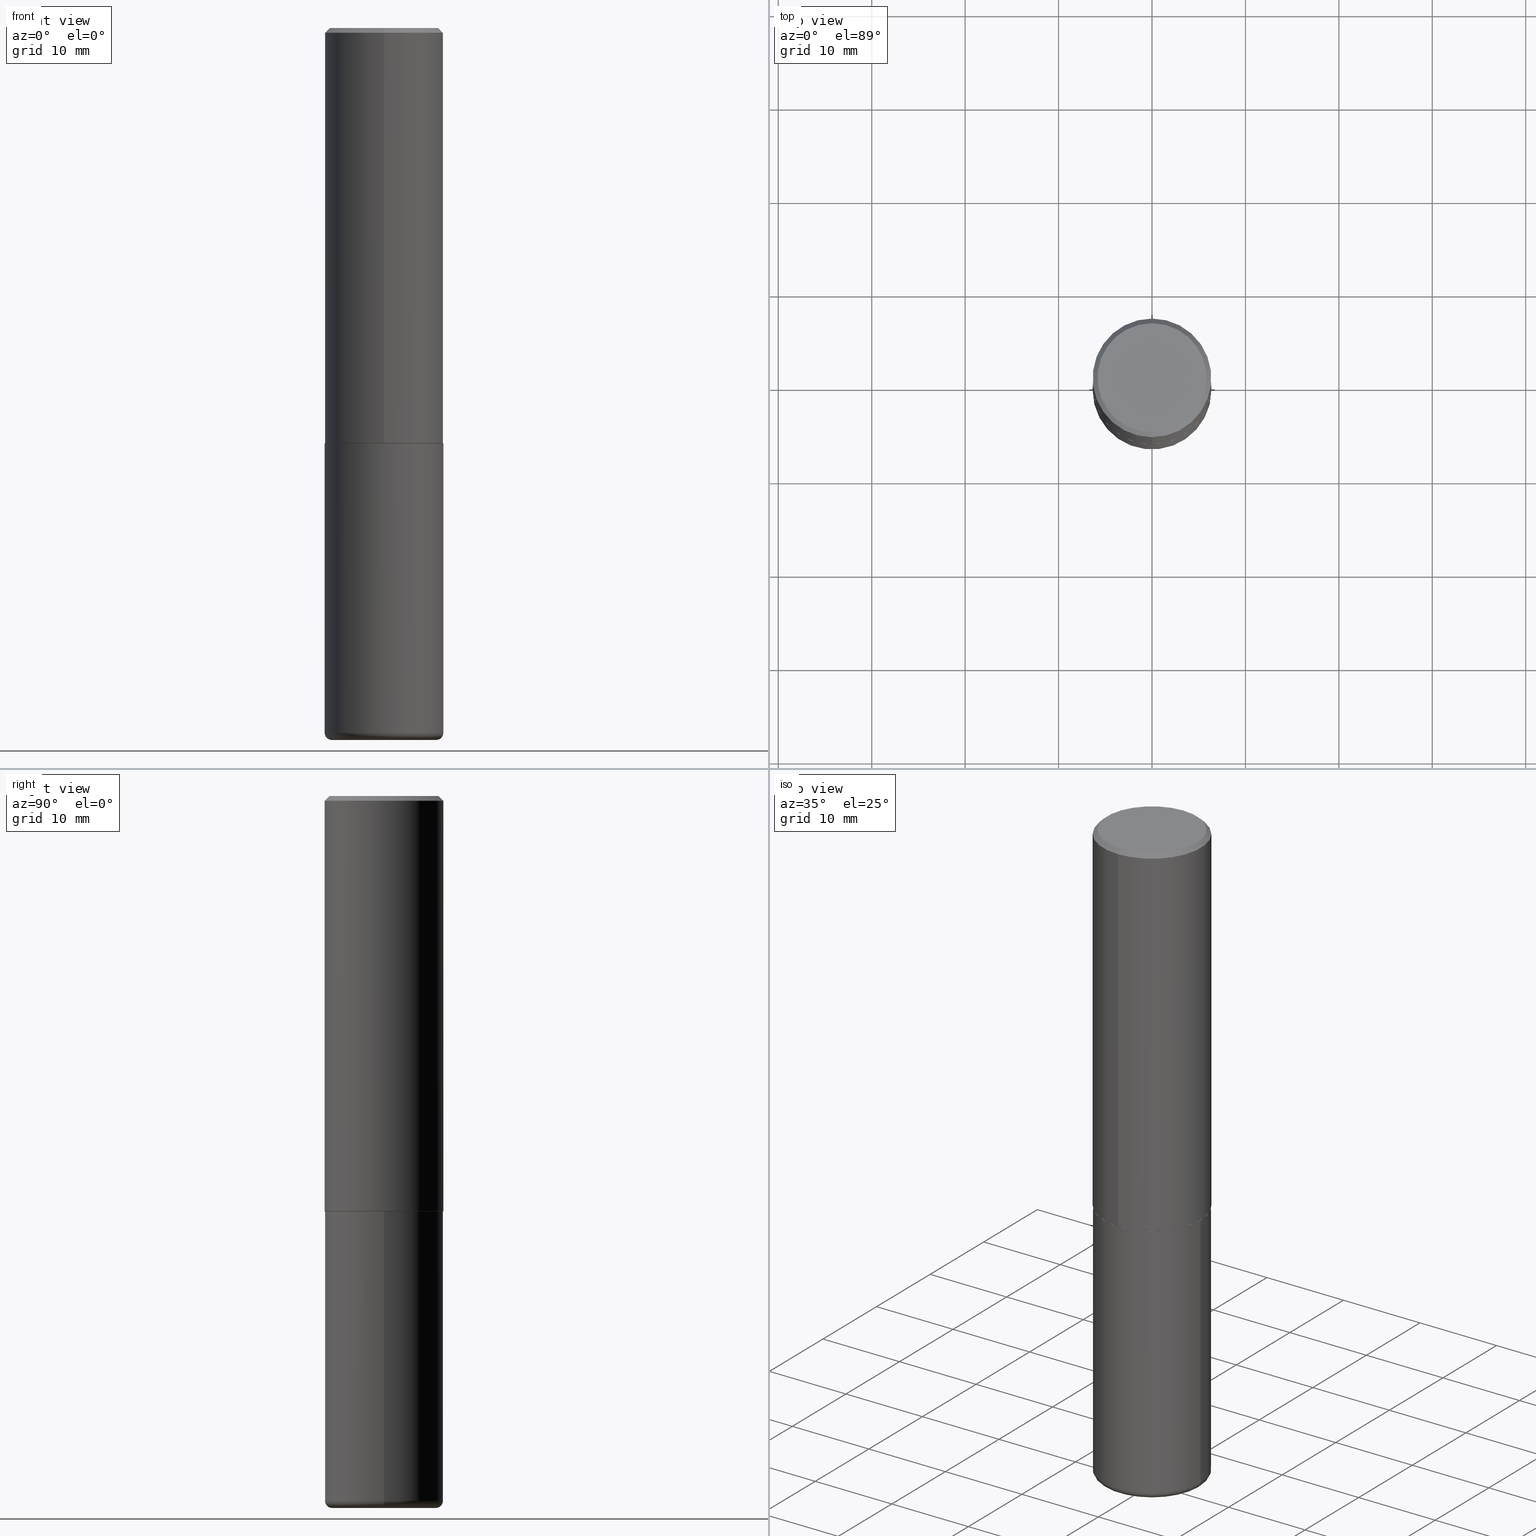
[diagram: canonical four-view strip — front | top / right | iso, engineering-drawing reading convention]
A machine part, canonical four-view strip (front | top / right | iso — engineering-drawing reading convention). The complete STEP part file that produces these views, byte-faithful:
ISO-10303-21;
HEADER;
FILE_DESCRIPTION (( 'STEP AP203' ),
    '1' );
FILE_NAME ('36630.STEP',
    '2024-03-01T17:07:47',
    ( '' ),
    ( '' ),
    'SwSTEP 2.0',
    'SolidWorks 2023',
    '' );
FILE_SCHEMA (( 'CONFIG_CONTROL_DESIGN' ));
ENDSEC;

DATA;
#1 = FACE_OUTER_BOUND ( 'NONE', #214, .T. ) ;
#2 = CARTESIAN_POINT ( 'NONE',  ( 4.890144249563362123E-31, -6.984098818381232815E-17, -0.02000000000000005593 ) ) ;
#3 = PRODUCT ( '36630', '36630', '', ( #344 ) ) ;
#4 = APPROVAL ( #284, 'UNSPECIFIED' ) ;
#5 = ORIENTED_EDGE ( 'NONE', *, *, #259, .T. ) ;
#6 = LINE ( 'NONE', #59, #158 ) ;
#7 = CC_DESIGN_APPROVAL ( #4, ( #40 ) ) ;
#8 = FACE_OUTER_BOUND ( 'NONE', #354, .T. ) ;
#9 = CARTESIAN_POINT ( 'NONE',  ( 4.279570410823989044E-29, -6.110092342975505460E-15, -1.750000000000000222 ) ) ;
#10 = ORIENTED_EDGE ( 'NONE', *, *, #264, .F. ) ;
#11 = CC_DESIGN_PERSON_AND_ORGANIZATION_ASSIGNMENT ( #246, #153, ( #204 ) ) ;
#12 = CYLINDRICAL_SURFACE ( 'NONE', #223, 0.2500000000000000000 ) ;
#13 = CARTESIAN_POINT ( 'NONE',  ( 0.2200000000000000011, -1.201069580562041471E-14, -2.999999999999999556 ) ) ;
#14 = CARTESIAN_POINT ( 'NONE',  ( 1.675911042644703774E-15, 0.2299999999999998990, -6.920593831913123980E-16 ) ) ;
#15 = DIRECTION ( 'NONE',  ( -6.982962677686265133E-15, -1.000000000000000000, 3.291383124896702687E-15 ) ) ;
#16 = ADVANCED_FACE ( 'NONE', ( #1 ), #243, .T. ) ;
#17 = LINE ( 'NONE', #149, #278 ) ;
#18 = DIRECTION ( 'NONE',  ( 1.000000000000000000, -6.982962677686266711E-15, 4.876176775795935793E-29 ) ) ;
#19 = DIRECTION ( 'NONE',  ( -4.937700262164884886E-15, -0.7071067811865933139, 0.7071067811865017205 ) ) ;
#20 = DATE_AND_TIME ( #250, #294 ) ;
#21 = ADVANCED_FACE ( 'NONE', ( #148 ), #12, .T. ) ;
#22 = DIRECTION ( 'NONE',  ( -6.982962677686265133E-15, -1.000000000000000000, 3.291383124896702687E-15 ) ) ;
#23 = COORDINATED_UNIVERSAL_TIME_OFFSET ( 5, 0, .BEHIND. ) ;
#24 = PERSON_AND_ORGANIZATION ( #232, #194 ) ;
#25 = CARTESIAN_POINT ( 'NONE',  ( -2.716768072829434168E-45, 3.880085273345076260E-31, 1.111119809225267872E-16 ) ) ;
#26 = EDGE_CURVE ( 'NONE', #219, #306, #193, .T. ) ;
#27 = CARTESIAN_POINT ( 'NONE',  ( -0.2499999999999998612, -8.593342736963892519E-15, -2.970000000000000195 ) ) ;
#28 = APPROVAL_ROLE ( '' ) ;
#29 = EDGE_LOOP ( 'NONE', ( #37, #185, #171, #38 ) ) ;
#30 = DATE_TIME_ROLE ( 'creation_date' ) ;
#31 = DIRECTION ( 'NONE',  ( -6.982962677686265922E-15, -1.000000000000000000, 3.492049409190606744E-15 ) ) ;
#32 = AXIS2_PLACEMENT_3D ( 'NONE', #239, #317, #313 ) ;
#33 = AXIS2_PLACEMENT_3D ( 'NONE', #96, #266, #383 ) ;
#34 = ORIENTED_EDGE ( 'NONE', *, *, #346, .F. ) ;
#35 = PLANE ( 'NONE',  #343 ) ;
#36 = LINE ( 'NONE', #301, #49 ) ;
#37 = ORIENTED_EDGE ( 'NONE', *, *, #319, .F. ) ;
#38 = ORIENTED_EDGE ( 'NONE', *, *, #207, .F. ) ;
#39 = AXIS2_PLACEMENT_3D ( 'NONE', #177, #159, #45 ) ;
#40 = SECURITY_CLASSIFICATION ( '', '', #378 ) ;
#41 = CC_DESIGN_PERSON_AND_ORGANIZATION_ASSIGNMENT ( #113, #152, ( #172 ) ) ;
#42 = ORIENTED_EDGE ( 'NONE', *, *, #183, .F. ) ;
#43 = CARTESIAN_POINT ( 'NONE',  ( 7.336406418555408669E-29, -1.047444401652943478E-14, -2.999999999999999556 ) ) ;
#44 = DIRECTION ( 'NONE',  ( -2.445072124781674388E-29, 3.492049409190606744E-15, 1.000000000000000000 ) ) ;
#45 = DIRECTION ( 'NONE',  ( -6.982962677686265133E-15, -1.000000000000000000, 3.278217592397113101E-15 ) ) ;
#46 = EDGE_LOOP ( 'NONE', ( #231, #267, #304, #274 ) ) ;
#47 = DIRECTION ( 'NONE',  ( -2.445468806185136597E-29, 3.491481338843145583E-15, 1.000000000000000000 ) ) ;
#48 = DIRECTION ( 'NONE',  ( 1.000000000000000000, -6.982962677686266711E-15, 0.000000000000000000 ) ) ;
#49 = VECTOR ( 'NONE', #146, 39.37007874015748143 ) ;
#50 = LINE ( 'NONE', #173, #210 ) ;
#51 = DIRECTION ( 'NONE',  ( 1.000000000000000000, -6.982962677686262766E-15, 4.883557194083111780E-29 ) ) ;
#52 = DIRECTION ( 'NONE',  ( -2.445468806185136597E-29, 3.491481338843145583E-15, 1.000000000000000000 ) ) ;
#53 = DIRECTION ( 'NONE',  ( 6.982962677686265922E-15, 1.000000000000000000, -3.500180241882336472E-15 ) ) ;
#54 = DIRECTION ( 'NONE',  ( -2.445072124781674388E-29, 3.492049409190606744E-15, 1.000000000000000000 ) ) ;
#55 = AXIS2_PLACEMENT_3D ( 'NONE', #372, #402, #150 ) ;
#56 = CC_DESIGN_DATE_AND_TIME_ASSIGNMENT ( #20, #30, ( #204 ) ) ;
#57 = AXIS2_PLACEMENT_3D ( 'NONE', #411, #408, #125 ) ;
#58 = APPROVAL_ROLE ( '' ) ;
#59 = CARTESIAN_POINT ( 'NONE',  ( -1.745740669421567467E-15, -0.2500000000000001110, 8.730123522976521790E-16 ) ) ;
#60 = COORDINATED_UNIVERSAL_TIME_OFFSET ( 5, 0, .BEHIND. ) ;
#61 = APPROVAL_DATE_TIME ( #349, #4 ) ;
#62 = EDGE_CURVE ( 'NONE', #156, #360, #170, .T. ) ;
#63 = CARTESIAN_POINT ( 'NONE',  ( 1.745740669421567467E-15, 0.2500000000000000000, -0.02000000000000093023 ) ) ;
#64 = AXIS2_PLACEMENT_3D ( 'NONE', #395, #202, #53 ) ;
#65 = APPROVAL_STATUS ( 'not_yet_approved' ) ;
#66 = LOCAL_TIME ( 12, 7, 47.00000000000000000, #212 ) ;
#67 = ORIENTED_EDGE ( 'NONE', *, *, #227, .T. ) ;
#68 = DIRECTION ( 'NONE',  ( 1.000000000000000000, 0.000000000000000000, 0.000000000000000000 ) ) ;
#69 = ORIENTED_EDGE ( 'NONE', *, *, #296, .T. ) ;
#70 = CONICAL_SURFACE ( 'NONE', #64, 0.2500000000000000555, 0.7853981633974481680 ) ;
#71 = ORIENTED_EDGE ( 'NONE', *, *, #296, .F. ) ;
#72 = ORIENTED_EDGE ( 'NONE', *, *, #160, .T. ) ;
#73 = DIRECTION ( 'NONE',  ( -2.445072124781674388E-29, 3.492049409190606744E-15, 1.000000000000000000 ) ) ;
#74 = VERTEX_POINT ( 'NONE', #14 ) ;
#75 = CIRCLE ( 'NONE', #314, 0.2500000000000000000 ) ;
#76 = MANIFOLD_SOLID_BREP ( 'Body-Move/Copy2[1]', #326 ) ;
#77 = VERTEX_POINT ( 'NONE', #366 ) ;
#78 = CARTESIAN_POINT ( 'NONE',  ( 4.276431146243148366E-29, -6.107594416674370195E-15, -1.748999999999999888 ) ) ;
#79 = ADVANCED_FACE ( 'NONE', ( #398 ), #109, .T. ) ;
#80 = MANIFOLD_SOLID_BREP ( 'Body-Move/Copy2[2]', #221 ) ;
#81 = VECTOR ( 'NONE', #348, 39.37007874015748143 ) ;
#82 = CIRCLE ( 'NONE', #101, 0.2500000000000000555 ) ;
#83 = CC_DESIGN_APPROVAL ( #331, ( #204 ) ) ;
#84 = ADVANCED_FACE ( 'NONE', ( #8 ), #396, .T. ) ;
#85 = DATE_AND_TIME ( #119, #357 ) ;
#86 = EDGE_CURVE ( 'NONE', #302, #95, #178, .T. ) ;
#87 = PERSON_AND_ORGANIZATION ( #232, #194 ) ;
#88 = DIRECTION ( 'NONE',  ( -2.445468806185136597E-29, 3.491481338843145583E-15, 1.000000000000000000 ) ) ;
#89 = AXIS2_PLACEMENT_3D ( 'NONE', #43, #196, #320 ) ;
#90 = PERSON_AND_ORGANIZATION_ROLE ( 'classification_officer' ) ;
#91 = FACE_OUTER_BOUND ( 'NONE', #136, .T. ) ;
#92 = ORIENTED_EDGE ( 'NONE', *, *, #292, .T. ) ;
#93 = ADVANCED_FACE ( 'NONE', ( #107 ), #234, .T. ) ;
#94 = AXIS2_PLACEMENT_3D ( 'NONE', #25, #73, #254 ) ;
#95 = VERTEX_POINT ( 'NONE', #143 ) ;
#96 = CARTESIAN_POINT ( 'NONE',  ( 0.2200000000000000011, -1.190595136545512292E-14, -2.970000000000000195 ) ) ;
#97 = DIRECTION ( 'NONE',  ( -2.445072124781674107E-29, 3.492049409190606350E-15, 1.000000000000000000 ) ) ;
#98 = CARTESIAN_POINT ( 'NONE',  ( 0.000000000000000000, 0.000000000000000000, 0.000000000000000000 ) ) ;
#99 = EDGE_LOOP ( 'NONE', ( #163, #393 ) ) ;
#100 = DIRECTION ( 'NONE',  ( 2.438088387897960049E-29, -3.491481338843145188E-15, -1.000000000000000000 ) ) ;
#101 = AXIS2_PLACEMENT_3D ( 'NONE', #2, #412, #297 ) ;
#102 = ORIENTED_EDGE ( 'NONE', *, *, #385, .F. ) ;
#103 = CARTESIAN_POINT ( 'NONE',  ( 0.000000000000000000, 0.000000000000000000, 0.000000000000000000 ) ) ;
#104 = CARTESIAN_POINT ( 'NONE',  ( 0.2500000000000000000, -7.855833012397072137E-15, -1.750000000000000222 ) ) ;
#105 = ORIENTED_EDGE ( 'NONE', *, *, #26, .T. ) ;
#106 = CIRCLE ( 'NONE', #340, 0.2500000000000000000 ) ;
#107 = FACE_OUTER_BOUND ( 'NONE', #226, .T. ) ;
#108 = LENGTH_MEASURE_WITH_UNIT ( LENGTH_MEASURE( 0.02539999999999999897 ), #237 );
#109 = PLANE ( 'NONE',  #293 ) ;
#110 = DIRECTION ( 'NONE',  ( 5.024295867788404755E-15, 0.7071067811865981989, 0.7071067811864968355 ) ) ;
#111 = DATE_TIME_ROLE ( 'classification_date' ) ;
#112 = APPLICATION_PROTOCOL_DEFINITION ( 'international standard', 'config_control_design', 1994, #315 ) ;
#113 = PERSON_AND_ORGANIZATION ( #232, #194 ) ;
#114 = AXIS2_PLACEMENT_3D ( 'NONE', #303, #44, #416 ) ;
#115 = CIRCLE ( 'NONE', #269, 0.02999999999999971440 ) ;
#116 = COORDINATED_UNIVERSAL_TIME_OFFSET ( 5, 0, .BEHIND. ) ;
#117 = CYLINDRICAL_SURFACE ( 'NONE', #135, 0.2500000000000001110 ) ;
#118 = DIRECTION ( 'NONE',  ( -2.445072124781674388E-29, 3.492049409190606350E-15, 1.000000000000000000 ) ) ;
#119 = CALENDAR_DATE ( 2024, 1, 3 ) ;
#120 = CARTESIAN_POINT ( 'NONE',  ( -0.2500000000000000000, -6.463539120269572968E-15, -1.750000000000000222 ) ) ;
#121 = APPLICATION_PROTOCOL_DEFINITION ( 'international standard', 'config_control_design', 1994, #238 ) ;
#122 = CARTESIAN_POINT ( 'NONE',  ( 4.278876218367930669E-29, -6.111086466083562295E-15, -1.750000000000000222 ) ) ;
#123 = AXIS2_PLACEMENT_3D ( 'NONE', #103, #353, #68 ) ;
#124 = EDGE_CURVE ( 'NONE', #417, #77, #50, .T. ) ;
#125 = DIRECTION ( 'NONE',  ( 6.982962677686265922E-15, 1.000000000000000000, -3.492049409190606350E-15 ) ) ;
#126 = CC_DESIGN_DATE_AND_TIME_ASSIGNMENT ( #401, #111, ( #40 ) ) ;
#127 = ORIENTED_EDGE ( 'NONE', *, *, #292, .F. ) ;
#128 = CARTESIAN_POINT ( 'NONE',  ( 4.890144249563362123E-31, -6.984098818381232815E-17, -0.02000000000000005593 ) ) ;
#129 = CIRCLE ( 'NONE', #89, 0.2200000000000000011 ) ;
#130 =( GEOMETRIC_REPRESENTATION_CONTEXT ( 3 ) GLOBAL_UNCERTAINTY_ASSIGNED_CONTEXT ( ( #367 ) ) GLOBAL_UNIT_ASSIGNED_CONTEXT ( ( #236, #342, #399 ) ) REPRESENTATION_CONTEXT ( 'NONE', 'WORKASPACE' ) );
#131 = ORIENTED_EDGE ( 'NONE', *, *, #365, .T. ) ;
#132 = ORIENTED_EDGE ( 'NONE', *, *, #255, .T. ) ;
#133 = ORIENTED_EDGE ( 'NONE', *, *, #62, .T. ) ;
#134 = DIRECTION ( 'NONE',  ( 6.982962677686265922E-15, 1.000000000000000000, -3.500180241882336472E-15 ) ) ;
#135 = AXIS2_PLACEMENT_3D ( 'NONE', #229, #144, #288 ) ;
#136 = EDGE_LOOP ( 'NONE', ( #358, #300 ) ) ;
#137 = DIRECTION ( 'NONE',  ( -6.982962677686265133E-15, -1.000000000000000000, 3.278217592397113101E-15 ) ) ;
#138 = DESIGN_CONTEXT ( 'detailed design', #238, 'design' ) ;
#139 = CARTESIAN_POINT ( 'NONE',  ( -0.2500000000000000000, 1.776356839400250465E-15, -1.229733772563726445E-29 ) ) ;
#140 = ORIENTED_EDGE ( 'NONE', *, *, #259, .F. ) ;
#141 = ADVANCED_FACE ( 'NONE', ( #394 ), #70, .T. ) ;
#142 = CARTESIAN_POINT ( 'NONE',  ( 4.278876218367929548E-29, -6.111086466083561506E-15, -1.750000000000000000 ) ) ;
#143 = CARTESIAN_POINT ( 'NONE',  ( 1.776356839400273342E-15, 0.2499999999999941158, -1.749000000000000554 ) ) ;
#144 = DIRECTION ( 'NONE',  ( -2.445072124781674388E-29, 3.492049409190606744E-15, 1.000000000000000000 ) ) ;
#145 = CARTESIAN_POINT ( 'NONE',  ( -1.646519519465166968E-15, -0.2299999999999998990, 9.142833450363660218E-16 ) ) ;
#146 = DIRECTION ( 'NONE',  ( -2.445072124781674107E-29, 3.492049409190606350E-15, 1.000000000000000000 ) ) ;
#147 = APPROVAL_PERSON_ORGANIZATION ( #240, #331, #58 ) ;
#148 = FACE_OUTER_BOUND ( 'NONE', #333, .T. ) ;
#149 = CARTESIAN_POINT ( 'NONE',  ( -1.738757706743837473E-15, -0.2490000000000061053, -1.749999999999999112 ) ) ;
#150 = DIRECTION ( 'NONE',  ( 1.000000000000000000, -6.982962677686270655E-15, 0.000000000000000000 ) ) ;
#151 = LINE ( 'NONE', #139, #268 ) ;
#152 = PERSON_AND_ORGANIZATION_ROLE ( 'creator' ) ;
#153 = PERSON_AND_ORGANIZATION_ROLE ( 'creator' ) ;
#154 = CIRCLE ( 'NONE', #39, 0.2500000000000002220 ) ;
#155 = PERSON_AND_ORGANIZATION_ROLE ( 'design_owner' ) ;
#156 = VERTEX_POINT ( 'NONE', #175 ) ;
#157 = CARTESIAN_POINT ( 'NONE',  ( 0.2500000000000000000, -1.745740669421566678E-15, 1.219044193948983948E-29 ) ) ;
#158 = VECTOR ( 'NONE', #97, 39.37007874015748143 ) ;
#159 = DIRECTION ( 'NONE',  ( -2.445072124781674388E-29, 3.492049409190606744E-15, 1.000000000000000000 ) ) ;
#160 = EDGE_CURVE ( 'NONE', #95, #302, #154, .T. ) ;
#161 = EDGE_LOOP ( 'NONE', ( #386, #67, #102, #71 ) ) ;
#162 = CARTESIAN_POINT ( 'NONE',  ( 7.336406418555408669E-29, -1.047444401652943478E-14, -2.999999999999999556 ) ) ;
#163 = ORIENTED_EDGE ( 'NONE', *, *, #324, .F. ) ;
#164 = EDGE_LOOP ( 'NONE', ( #132, #5 ) ) ;
#165 = ORIENTED_EDGE ( 'NONE', *, *, #86, .F. ) ;
#166 = AXIS2_PLACEMENT_3D ( 'NONE', #316, #47, #51 ) ;
#167 = ORIENTED_EDGE ( 'NONE', *, *, #283, .F. ) ;
#168 = DIRECTION ( 'NONE',  ( -2.445072124781674388E-29, 3.492049409190606744E-15, 1.000000000000000000 ) ) ;
#169 = DIRECTION ( 'NONE',  ( -2.445468806185136597E-29, 3.491481338843145583E-15, 1.000000000000000000 ) ) ;
#170 = CIRCLE ( 'NONE', #55, 0.2500000000000000000 ) ;
#171 = ORIENTED_EDGE ( 'NONE', *, *, #385, .T. ) ;
#172 = PRODUCT_DEFINITION_FORMATION_WITH_SPECIFIED_SOURCE ( 'ANY', '', #3, .NOT_KNOWN. ) ;
#173 = CARTESIAN_POINT ( 'NONE',  ( -1.715124499442882693E-15, -0.2500000000000001110, -0.01999999999999918163 ) ) ;
#174 = DIRECTION ( 'NONE',  ( -2.445072124781674388E-29, 3.492049409190606744E-15, 1.000000000000000000 ) ) ;
#175 = CARTESIAN_POINT ( 'NONE',  ( 0.2499999999999998612, -1.211544024578571124E-14, -2.970000000000000195 ) ) ;
#176 = DIRECTION ( 'NONE',  ( -6.982962677686266711E-15, -1.000000000000000000, 3.492049409190607138E-15 ) ) ;
#177 = CARTESIAN_POINT ( 'NONE',  ( 4.276431146243148366E-29, -6.107594416674370195E-15, -1.748999999999999888 ) ) ;
#178 = CIRCLE ( 'NONE', #203, 0.2500000000000002220 ) ;
#179 = ADVANCED_FACE ( 'NONE', ( #181 ), #117, .T. ) ;
#180 = DIRECTION ( 'NONE',  ( 1.000000000000000000, -6.982962677686266711E-15, 4.876176775795935793E-29 ) ) ;
#181 = FACE_OUTER_BOUND ( 'NONE', #218, .T. ) ;
#182 = SHAPE_DEFINITION_REPRESENTATION ( #222, #249 ) ;
#183 = EDGE_CURVE ( 'NONE', #156, #381, #295, .T. ) ;
#184 = AXIS2_PLACEMENT_3D ( 'NONE', #308, #174, #230 ) ;
#185 = ORIENTED_EDGE ( 'NONE', *, *, #124, .T. ) ;
#186 = EDGE_CURVE ( 'NONE', #306, #219, #418, .T. ) ;
#187 = DIRECTION ( 'NONE',  ( -2.445468806185136877E-29, 3.491481338843145188E-15, 1.000000000000000000 ) ) ;
#188 = COORDINATED_UNIVERSAL_TIME_OFFSET ( 5, 0, .BEHIND. ) ;
#189 = LOCAL_TIME ( 12, 7, 47.00000000000000000, #188 ) ;
#190 = CARTESIAN_POINT ( 'NONE',  ( 7.263042354369856275E-29, -1.036969957636414298E-14, -2.970000000000000195 ) ) ;
#191 = APPROVAL ( #376, 'UNSPECIFIED' ) ;
#192 = FACE_OUTER_BOUND ( 'NONE', #257, .T. ) ;
#193 = CIRCLE ( 'NONE', #379, 0.2489999999999999991 ) ;
#194 = ORGANIZATION ( 'UNSPECIFIED', 'UNSPECIFIED', '' ) ;
#195 = CYLINDRICAL_SURFACE ( 'NONE', #328, 0.2500000000000000000 ) ;
#196 = DIRECTION ( 'NONE',  ( -2.445468806185136597E-29, 3.491481338843145583E-15, 1.000000000000000000 ) ) ;
#197 = ADVANCED_FACE ( 'NONE', ( #91 ), #208, .F. ) ;
#198 = DIRECTION ( 'NONE',  ( -2.445072124781674388E-29, 3.492049409190606744E-15, 1.000000000000000000 ) ) ;
#199 = CARTESIAN_POINT ( 'NONE',  ( 1.253905894061077399E-28, -3.023949488354168584E-15, -2.999999999999999556 ) ) ;
#200 = CC_DESIGN_PERSON_AND_ORGANIZATION_ASSIGNMENT ( #87, #90, ( #40 ) ) ;
#201 = AXIS2_PLACEMENT_3D ( 'NONE', #9, #100, #272 ) ;
#202 = DIRECTION ( 'NONE',  ( 2.445072124781674388E-29, -3.492049409190606744E-15, -1.000000000000000000 ) ) ;
#203 = AXIS2_PLACEMENT_3D ( 'NONE', #78, #168, #137 ) ;
#204 = PRODUCT_DEFINITION ( 'UNKNOWN', '', #172, #138 ) ;
#205 = CALENDAR_DATE ( 2024, 1, 3 ) ;
#206 = CALENDAR_DATE ( 2024, 1, 3 ) ;
#207 = EDGE_CURVE ( 'NONE', #74, #410, #350, .T. ) ;
#208 = PLANE ( 'NONE',  #57 ) ;
#209 = VERTEX_POINT ( 'NONE', #120 ) ;
#210 = VECTOR ( 'NONE', #275, 39.37007874015748854 ) ;
#211 = APPROVAL_PERSON_ORGANIZATION ( #374, #191, #28 ) ;
#212 = COORDINATED_UNIVERSAL_TIME_OFFSET ( 5, 0, .BEHIND. ) ;
#213 = DIRECTION ( 'NONE',  ( 1.000000000000000000, -6.982962677686270655E-15, 0.000000000000000000 ) ) ;
#214 = EDGE_LOOP ( 'NONE', ( #332, #131, #291, #34 ) ) ;
#215 = DIRECTION ( 'NONE',  ( -2.445072124781674388E-29, 3.492049409190606744E-15, 1.000000000000000000 ) ) ;
#216 = DIRECTION ( 'NONE',  ( 1.000000000000000000, -6.982962677686270655E-15, 0.000000000000000000 ) ) ;
#217 = CARTESIAN_POINT ( 'NONE',  ( -0.2200000000000000011, -8.806505557691921187E-15, -2.970000000000000195 ) ) ;
#218 = EDGE_LOOP ( 'NONE', ( #392, #72, #69, #127 ) ) ;
#219 = VERTEX_POINT ( 'NONE', #251 ) ;
#220 = ORIENTED_EDGE ( 'NONE', *, *, #26, .F. ) ;
#221 = CLOSED_SHELL ( 'NONE', ( #93, #241, #389, #141, #179, #299, #335, #197 ) ) ;
#222 = PRODUCT_DEFINITION_SHAPE ( 'NONE', 'NONE',  #204 ) ;
#223 = AXIS2_PLACEMENT_3D ( 'NONE', #235, #282, #18 ) ;
#224 = DIRECTION ( 'NONE',  ( 7.105427357601001859E-15, 1.000000000000000000, -3.491481338843145583E-15 ) ) ;
#225 = AXIS2_PLACEMENT_3D ( 'NONE', #409, #329, #31 ) ;
#226 = EDGE_LOOP ( 'NONE', ( #105, #298, #165, #10 ) ) ;
#227 = EDGE_CURVE ( 'NONE', #95, #410, #36, .T. ) ;
#228 = DIRECTION ( 'NONE',  ( -2.445468806185136597E-29, 3.491481338843145583E-15, 1.000000000000000000 ) ) ;
#229 = CARTESIAN_POINT ( 'NONE',  ( 0.000000000000000000, 0.000000000000000000, 0.000000000000000000 ) ) ;
#230 = DIRECTION ( 'NONE',  ( -6.982962677686265133E-15, -1.000000000000000000, 3.291383124896702687E-15 ) ) ;
#231 = ORIENTED_EDGE ( 'NONE', *, *, #277, .F. ) ;
#232 = PERSON ( 'UNSPECIFIED', 'UNSPECIFIED', 'UNSPECIFIED', ('UNSPECIFIED'), ('UNSPECIFIED'), ('UNSPECIFIED') ) ;
#233 = FACE_OUTER_BOUND ( 'NONE', #46, .T. ) ;
#234 = CONICAL_SURFACE ( 'NONE', #184, 0.2489999999999999991, 0.7853981633975165577 ) ;
#235 = CARTESIAN_POINT ( 'NONE',  ( 0.000000000000000000, 0.000000000000000000, 0.000000000000000000 ) ) ;
#236 =( CONVERSION_BASED_UNIT ( 'INCH', #108 ) LENGTH_UNIT ( ) NAMED_UNIT ( #286 ) );
#237 =( LENGTH_UNIT ( ) NAMED_UNIT ( * ) SI_UNIT ( $, .METRE. ) );
#238 = APPLICATION_CONTEXT ( 'configuration controlled 3d designs of mechanical parts and assemblies' ) ;
#239 = CARTESIAN_POINT ( 'NONE',  ( 4.279570410823989044E-29, -6.110092342975505460E-15, -1.750000000000000222 ) ) ;
#240 = PERSON_AND_ORGANIZATION ( #232, #194 ) ;
#241 = ADVANCED_FACE ( 'NONE', ( #279 ), #384, .T. ) ;
#242 = PERSON_AND_ORGANIZATION ( #232, #194 ) ;
#243 = TOROIDAL_SURFACE ( 'NONE', #404, 0.2200000000000000011, 0.02999999999999969705 ) ;
#244 = CIRCLE ( 'NONE', #114, 0.2500000000000000555 ) ;
#245 = CC_DESIGN_SECURITY_CLASSIFICATION ( #40, ( #172 ) ) ;
#246 = PERSON_AND_ORGANIZATION ( #232, #194 ) ;
#247 = DIRECTION ( 'NONE',  ( -6.982962677686265133E-15, -1.000000000000000000, 3.291383124896702687E-15 ) ) ;
#248 = PRODUCT_RELATED_PRODUCT_CATEGORY ( 'detail', '', ( #3 ) ) ;
#249 = ADVANCED_BREP_SHAPE_REPRESENTATION ( '36630', ( #76, #80, #123 ), #130 ) ;
#250 = CALENDAR_DATE ( 2024, 1, 3 ) ;
#251 = CARTESIAN_POINT ( 'NONE',  ( -1.738757706743837473E-15, -0.2490000000000061053, -1.749999999999999112 ) ) ;
#252 = PERSON_AND_ORGANIZATION ( #232, #194 ) ;
#253 = CIRCLE ( 'NONE', #32, 0.2500000000000000000 ) ;
#254 = DIRECTION ( 'NONE',  ( -6.982962677686265922E-15, -1.000000000000000000, 3.492049409190606744E-15 ) ) ;
#255 = EDGE_CURVE ( 'NONE', #381, #209, #106, .T. ) ;
#256 = DIRECTION ( 'NONE',  ( -6.982962677686265922E-15, -1.000000000000000000, 3.492049409190606350E-15 ) ) ;
#257 = EDGE_LOOP ( 'NONE', ( #133, #355, #323, #42 ) ) ;
#258 = CIRCLE ( 'NONE', #33, 0.02999999999999971440 ) ;
#259 = EDGE_CURVE ( 'NONE', #209, #381, #253, .T. ) ;
#260 = ORIENTED_EDGE ( 'NONE', *, *, #361, .F. ) ;
#261 = CARTESIAN_POINT ( 'NONE',  ( 1.772804125721493151E-15, 0.2489999999999938929, -1.750000000000000666 ) ) ;
#262 = VERTEX_POINT ( 'NONE', #310 ) ;
#263 = DIRECTION ( 'NONE',  ( 2.445072124781674388E-29, -3.492049409190606744E-15, -1.000000000000000000 ) ) ;
#264 = EDGE_CURVE ( 'NONE', #219, #302, #17, .T. ) ;
#265 = EDGE_LOOP ( 'NONE', ( #270, #260, #352, #92 ) ) ;
#266 = DIRECTION ( 'NONE',  ( -6.982962677686266711E-15, -1.000000000000000000, 3.491481338843145583E-15 ) ) ;
#267 = ORIENTED_EDGE ( 'NONE', *, *, #186, .T. ) ;
#268 = VECTOR ( 'NONE', #187, 39.37007874015748143 ) ;
#269 = AXIS2_PLACEMENT_3D ( 'NONE', #217, #224, #363 ) ;
#270 = ORIENTED_EDGE ( 'NONE', *, *, #124, .F. ) ;
#271 = FACE_OUTER_BOUND ( 'NONE', #407, .T. ) ;
#272 = DIRECTION ( 'NONE',  ( -1.000000000000000000, 6.982962677686265922E-15, -4.876176775795935793E-29 ) ) ;
#273 = CARTESIAN_POINT ( 'NONE',  ( 0.000000000000000000, 0.000000000000000000, 0.000000000000000000 ) ) ;
#274 = ORIENTED_EDGE ( 'NONE', *, *, #160, .F. ) ;
#275 = DIRECTION ( 'NONE',  ( -4.851104656540962697E-15, -0.7071067811865497932, -0.7071067811865451302 ) ) ;
#276 = DIRECTION ( 'NONE',  ( 2.438088387897960049E-29, -3.491481338843145188E-15, -1.000000000000000000 ) ) ;
#277 = EDGE_CURVE ( 'NONE', #306, #95, #280, .T. ) ;
#278 = VECTOR ( 'NONE', #19, 39.37007874015748143 ) ;
#279 = FACE_OUTER_BOUND ( 'NONE', #161, .T. ) ;
#280 = LINE ( 'NONE', #400, #390 ) ;
#281 = CC_DESIGN_PERSON_AND_ORGANIZATION_ASSIGNMENT ( #24, #155, ( #3 ) ) ;
#282 = DIRECTION ( 'NONE',  ( -2.445468806185136597E-29, 3.491481338843145583E-15, 1.000000000000000000 ) ) ;
#283 = EDGE_CURVE ( 'NONE', #360, #209, #151, .T. ) ;
#284 = APPROVAL_STATUS ( 'not_yet_approved' ) ;
#285 = CC_DESIGN_PERSON_AND_ORGANIZATION_ASSIGNMENT ( #252, #321, ( #172 ) ) ;
#286 = DIMENSIONAL_EXPONENTS ( 1.000000000000000000, 0.000000000000000000, 0.000000000000000000, 0.000000000000000000, 0.000000000000000000, 0.000000000000000000, 0.000000000000000000 ) ;
#287 = DATE_AND_TIME ( #325, #189 ) ;
#288 = DIRECTION ( 'NONE',  ( -6.982962677686266711E-15, -1.000000000000000000, 3.492049409190607138E-15 ) ) ;
#289 = CARTESIAN_POINT ( 'NONE',  ( 4.278876218367929548E-29, -6.111086466083561506E-15, -1.750000000000000000 ) ) ;
#290 = DIRECTION ( 'NONE',  ( -2.445072124781674388E-29, 3.492049409190606744E-15, 1.000000000000000000 ) ) ;
#291 = ORIENTED_EDGE ( 'NONE', *, *, #403, .T. ) ;
#292 = EDGE_CURVE ( 'NONE', #410, #77, #82, .T. ) ;
#293 = AXIS2_PLACEMENT_3D ( 'NONE', #199, #276, #339 ) ;
#294 = LOCAL_TIME ( 12, 7, 47.00000000000000000, #23 ) ;
#295 = LINE ( 'NONE', #157, #81 ) ;
#296 = EDGE_CURVE ( 'NONE', #302, #77, #6, .T. ) ;
#297 = DIRECTION ( 'NONE',  ( -6.982962677686265922E-15, -1.000000000000000000, 3.500180241882336472E-15 ) ) ;
#298 = ORIENTED_EDGE ( 'NONE', *, *, #277, .T. ) ;
#299 = ADVANCED_FACE ( 'NONE', ( #233 ), #373, .T. ) ;
#300 = ORIENTED_EDGE ( 'NONE', *, *, #319, .T. ) ;
#301 = CARTESIAN_POINT ( 'NONE',  ( 1.776356839400251254E-15, 0.2500000000000001110, -8.730123522976521790E-16 ) ) ;
#302 = VERTEX_POINT ( 'NONE', #387 ) ;
#303 = CARTESIAN_POINT ( 'NONE',  ( 4.890144249563362123E-31, -6.984098818381232815E-17, -0.02000000000000005593 ) ) ;
#304 = ORIENTED_EDGE ( 'NONE', *, *, #264, .T. ) ;
#305 = FACE_OUTER_BOUND ( 'NONE', #164, .T. ) ;
#306 = VERTEX_POINT ( 'NONE', #261 ) ;
#307 = VERTEX_POINT ( 'NONE', #13 ) ;
#308 = CARTESIAN_POINT ( 'NONE',  ( 4.278876218367929548E-29, -6.111086466083561506E-15, -1.750000000000000000 ) ) ;
#309 = PLANE ( 'NONE',  #201 ) ;
#310 = CARTESIAN_POINT ( 'NONE',  ( -0.2200000000000000011, -8.752296367410555115E-15, -2.999999999999999556 ) ) ;
#311 = ORIENTED_EDGE ( 'NONE', *, *, #186, .F. ) ;
#312 = DIRECTION ( 'NONE',  ( 1.000000000000000000, -6.982962677686262766E-15, 4.883557194083111780E-29 ) ) ;
#313 = DIRECTION ( 'NONE',  ( 1.000000000000000000, -6.982962677686266711E-15, 0.000000000000000000 ) ) ;
#314 = AXIS2_PLACEMENT_3D ( 'NONE', #190, #88, #213 ) ;
#315 = APPLICATION_CONTEXT ( 'configuration controlled 3d designs of mechanical parts and assemblies' ) ;
#316 = CARTESIAN_POINT ( 'NONE',  ( 7.263042354369856275E-29, -1.036969957636414298E-14, -2.970000000000000195 ) ) ;
#317 = DIRECTION ( 'NONE',  ( -2.445468806185136597E-29, 3.491481338843145583E-15, 1.000000000000000000 ) ) ;
#318 = APPROVAL_DATE_TIME ( #85, #331 ) ;
#319 = EDGE_CURVE ( 'NONE', #417, #74, #351, .T. ) ;
#320 = DIRECTION ( 'NONE',  ( 1.000000000000000000, -6.982962677686270655E-15, 0.000000000000000000 ) ) ;
#321 = PERSON_AND_ORGANIZATION_ROLE ( 'design_supplier' ) ;
#322 = AXIS2_PLACEMENT_3D ( 'NONE', #273, #198, #176 ) ;
#323 = ORIENTED_EDGE ( 'NONE', *, *, #255, .F. ) ;
#324 = EDGE_CURVE ( 'NONE', #307, #262, #129, .T. ) ;
#325 = CALENDAR_DATE ( 2024, 1, 3 ) ;
#326 = CLOSED_SHELL ( 'NONE', ( #414, #84, #369, #21, #16, #79 ) ) ;
#327 = CIRCLE ( 'NONE', #382, 0.2200000000000000011 ) ;
#328 = AXIS2_PLACEMENT_3D ( 'NONE', #98, #52, #180 ) ;
#329 = DIRECTION ( 'NONE',  ( -2.445072124781674388E-29, 3.492049409190606744E-15, 1.000000000000000000 ) ) ;
#330 = ORIENTED_EDGE ( 'NONE', *, *, #403, .F. ) ;
#331 = APPROVAL ( #65, 'UNSPECIFIED' ) ;
#332 = ORIENTED_EDGE ( 'NONE', *, *, #406, .F. ) ;
#333 = EDGE_LOOP ( 'NONE', ( #167, #364, #338, #140 ) ) ;
#334 = AXIS2_PLACEMENT_3D ( 'NONE', #289, #215, #247 ) ;
#335 = ADVANCED_FACE ( 'NONE', ( #271 ), #35, .F. ) ;
#336 = ORIENTED_EDGE ( 'NONE', *, *, #324, .T. ) ;
#337 = CARTESIAN_POINT ( 'NONE',  ( 4.279570410823989044E-29, -6.110092342975505460E-15, -1.750000000000000222 ) ) ;
#338 = ORIENTED_EDGE ( 'NONE', *, *, #183, .T. ) ;
#339 = DIRECTION ( 'NONE',  ( -1.000000000000000000, 6.982962677686265922E-15, -4.876176775795935793E-29 ) ) ;
#340 = AXIS2_PLACEMENT_3D ( 'NONE', #337, #169, #48 ) ;
#341 = AXIS2_PLACEMENT_3D ( 'NONE', #128, #263, #134 ) ;
#342 =( NAMED_UNIT ( * ) PLANE_ANGLE_UNIT ( ) SI_UNIT ( $, .RADIAN. ) );
#343 = AXIS2_PLACEMENT_3D ( 'NONE', #122, #118, #256 ) ;
#344 = MECHANICAL_CONTEXT ( 'NONE', #315, 'mechanical' ) ;
#345 = APPROVAL_PERSON_ORGANIZATION ( #242, #4, #347 ) ;
#346 = EDGE_CURVE ( 'NONE', #360, #156, #75, .T. ) ;
#347 = APPROVAL_ROLE ( '' ) ;
#348 = DIRECTION ( 'NONE',  ( -2.445468806185136877E-29, 3.491481338843145188E-15, 1.000000000000000000 ) ) ;
#349 = DATE_AND_TIME ( #206, #397 ) ;
#350 = LINE ( 'NONE', #63, #356 ) ;
#351 = CIRCLE ( 'NONE', #94, 0.2299999999999998990 ) ;
#352 = ORIENTED_EDGE ( 'NONE', *, *, #207, .T. ) ;
#353 = DIRECTION ( 'NONE',  ( 0.000000000000000000, 0.000000000000000000, 1.000000000000000000 ) ) ;
#354 = EDGE_LOOP ( 'NONE', ( #336, #370, #388, #330 ) ) ;
#355 = ORIENTED_EDGE ( 'NONE', *, *, #283, .T. ) ;
#356 = VECTOR ( 'NONE', #380, 39.37007874015748854 ) ;
#357 = LOCAL_TIME ( 12, 7, 47.00000000000000000, #116 ) ;
#358 = ORIENTED_EDGE ( 'NONE', *, *, #361, .T. ) ;
#359 = CARTESIAN_POINT ( 'NONE',  ( 1.745740669421567467E-15, 0.2500000000000000000, -0.02000000000000093023 ) ) ;
#360 = VERTEX_POINT ( 'NONE', #27 ) ;
#361 = EDGE_CURVE ( 'NONE', #74, #417, #413, .T. ) ;
#362 = AXIS2_PLACEMENT_3D ( 'NONE', #377, #290, #22 ) ;
#363 = DIRECTION ( 'NONE',  ( -1.000000000000000000, 7.105427357600993970E-15, 0.000000000000000000 ) ) ;
#364 = ORIENTED_EDGE ( 'NONE', *, *, #346, .T. ) ;
#365 = EDGE_CURVE ( 'NONE', #262, #307, #327, .T. ) ;
#366 = CARTESIAN_POINT ( 'NONE',  ( -1.715124499442882693E-15, -0.2500000000000001110, -0.01999999999999918163 ) ) ;
#367 = UNCERTAINTY_MEASURE_WITH_UNIT (LENGTH_MEASURE( 1.000000000000000082E-05 ), #236, 'distance_accuracy_value', 'NONE');
#368 = FACE_OUTER_BOUND ( 'NONE', #29, .T. ) ;
#369 = ADVANCED_FACE ( 'NONE', ( #305 ), #309, .F. ) ;
#370 = ORIENTED_EDGE ( 'NONE', *, *, #406, .T. ) ;
#371 = CARTESIAN_POINT ( 'NONE',  ( 7.263042354369856275E-29, -1.036969957636414298E-14, -2.970000000000000195 ) ) ;
#372 = CARTESIAN_POINT ( 'NONE',  ( 7.263042354369856275E-29, -1.036969957636414298E-14, -2.970000000000000195 ) ) ;
#373 = CONICAL_SURFACE ( 'NONE', #334, 0.2489999999999999991, 0.7853981633975165577 ) ;
#374 = PERSON_AND_ORGANIZATION ( #232, #194 ) ;
#375 = CC_DESIGN_APPROVAL ( #191, ( #172 ) ) ;
#376 = APPROVAL_STATUS ( 'not_yet_approved' ) ;
#377 = CARTESIAN_POINT ( 'NONE',  ( 4.278876218367929548E-29, -6.111086466083561506E-15, -1.750000000000000000 ) ) ;
#378 = SECURITY_CLASSIFICATION_LEVEL ( 'unclassified' ) ;
#379 = AXIS2_PLACEMENT_3D ( 'NONE', #142, #54, #15 ) ;
#380 = DIRECTION ( 'NONE',  ( 4.937700262164546464E-15, 0.7071067811865447972, -0.7071067811865500152 ) ) ;
#381 = VERTEX_POINT ( 'NONE', #104 ) ;
#382 = AXIS2_PLACEMENT_3D ( 'NONE', #162, #415, #216 ) ;
#383 = DIRECTION ( 'NONE',  ( 1.000000000000000000, -6.982962677686269866E-15, 0.000000000000000000 ) ) ;
#384 = CYLINDRICAL_SURFACE ( 'NONE', #322, 0.2500000000000001110 ) ;
#385 = EDGE_CURVE ( 'NONE', #77, #410, #244, .T. ) ;
#386 = ORIENTED_EDGE ( 'NONE', *, *, #86, .T. ) ;
#387 = CARTESIAN_POINT ( 'NONE',  ( -1.745740669421525262E-15, -0.2500000000000063283, -1.748999999999999000 ) ) ;
#388 = ORIENTED_EDGE ( 'NONE', *, *, #62, .F. ) ;
#389 = ADVANCED_FACE ( 'NONE', ( #368 ), #391, .T. ) ;
#390 = VECTOR ( 'NONE', #110, 39.37007874015748143 ) ;
#391 = CONICAL_SURFACE ( 'NONE', #341, 0.2500000000000000555, 0.7853981633974481680 ) ;
#392 = ORIENTED_EDGE ( 'NONE', *, *, #227, .F. ) ;
#393 = ORIENTED_EDGE ( 'NONE', *, *, #365, .F. ) ;
#394 = FACE_OUTER_BOUND ( 'NONE', #265, .T. ) ;
#395 = CARTESIAN_POINT ( 'NONE',  ( 4.890144249563362123E-31, -6.984098818381232815E-17, -0.02000000000000005593 ) ) ;
#396 = TOROIDAL_SURFACE ( 'NONE', #166, 0.2200000000000000011, 0.02999999999999969705 ) ;
#397 = LOCAL_TIME ( 12, 7, 47.00000000000000000, #60 ) ;
#398 = FACE_OUTER_BOUND ( 'NONE', #99, .T. ) ;
#399 =( NAMED_UNIT ( * ) SI_UNIT ( $, .STERADIAN. ) SOLID_ANGLE_UNIT ( ) );
#400 = CARTESIAN_POINT ( 'NONE',  ( 1.769251412042691858E-15, 0.2489999999999938929, -1.750000000000000666 ) ) ;
#401 = DATE_AND_TIME ( #205, #66 ) ;
#402 = DIRECTION ( 'NONE',  ( -2.445468806185136597E-29, 3.491481338843145583E-15, 1.000000000000000000 ) ) ;
#403 = EDGE_CURVE ( 'NONE', #307, #156, #258, .T. ) ;
#404 = AXIS2_PLACEMENT_3D ( 'NONE', #371, #228, #312 ) ;
#405 = APPROVAL_DATE_TIME ( #287, #191 ) ;
#406 = EDGE_CURVE ( 'NONE', #262, #360, #115, .T. ) ;
#407 = EDGE_LOOP ( 'NONE', ( #220, #311 ) ) ;
#408 = DIRECTION ( 'NONE',  ( 2.445072124781674388E-29, -3.492049409190606350E-15, -1.000000000000000000 ) ) ;
#409 = CARTESIAN_POINT ( 'NONE',  ( -2.716768072829434168E-45, 3.880085273345076260E-31, 1.111119809225267872E-16 ) ) ;
#410 = VERTEX_POINT ( 'NONE', #359 ) ;
#411 = CARTESIAN_POINT ( 'NONE',  ( 1.606081415867840476E-15, 0.2299999999999998990, -7.476153736525759272E-16 ) ) ;
#412 = DIRECTION ( 'NONE',  ( -2.445072124781674388E-29, 3.492049409190606744E-15, 1.000000000000000000 ) ) ;
#413 = CIRCLE ( 'NONE', #225, 0.2299999999999998990 ) ;
#414 = ADVANCED_FACE ( 'NONE', ( #192 ), #195, .T. ) ;
#415 = DIRECTION ( 'NONE',  ( -2.445468806185136597E-29, 3.491481338843145583E-15, 1.000000000000000000 ) ) ;
#416 = DIRECTION ( 'NONE',  ( -6.982962677686265922E-15, -1.000000000000000000, 3.500180241882336472E-15 ) ) ;
#417 = VERTEX_POINT ( 'NONE', #145 ) ;
#418 = CIRCLE ( 'NONE', #362, 0.2489999999999999991 ) ;
ENDSEC;
END-ISO-10303-21;
